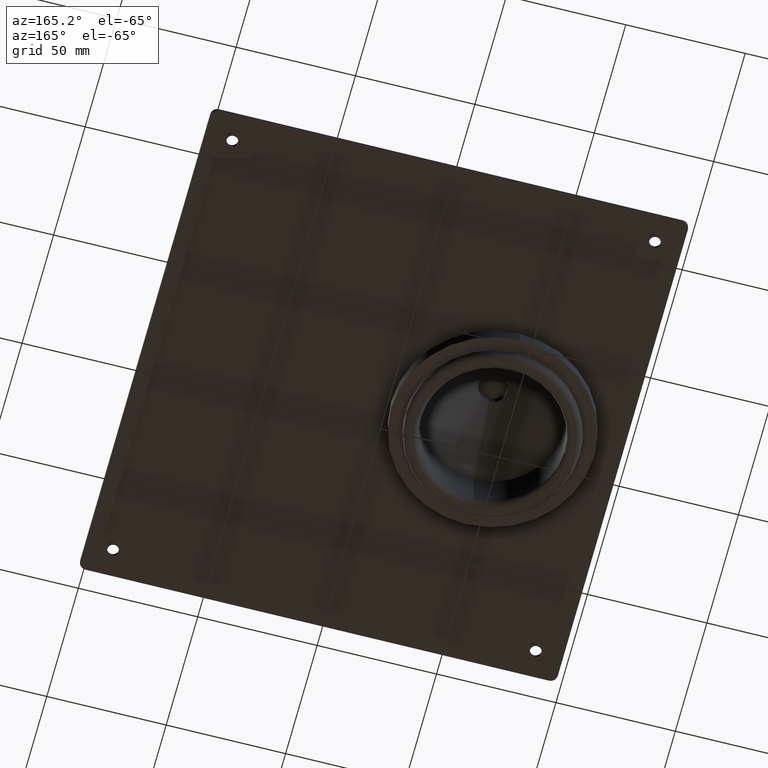
[diagram: clean part render]
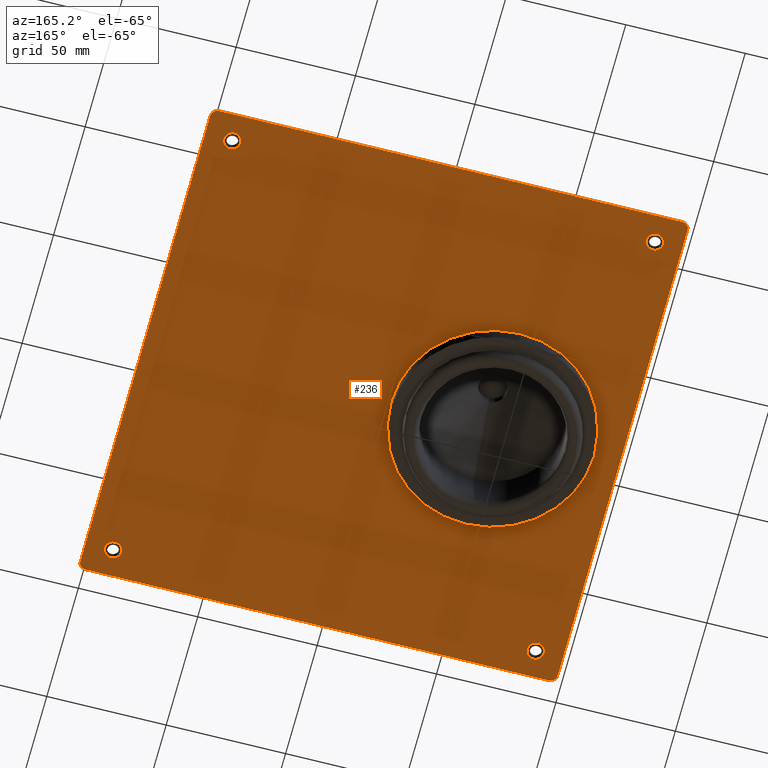
[diagram: same view with one face highlighted and labeled with its STEP entity id]
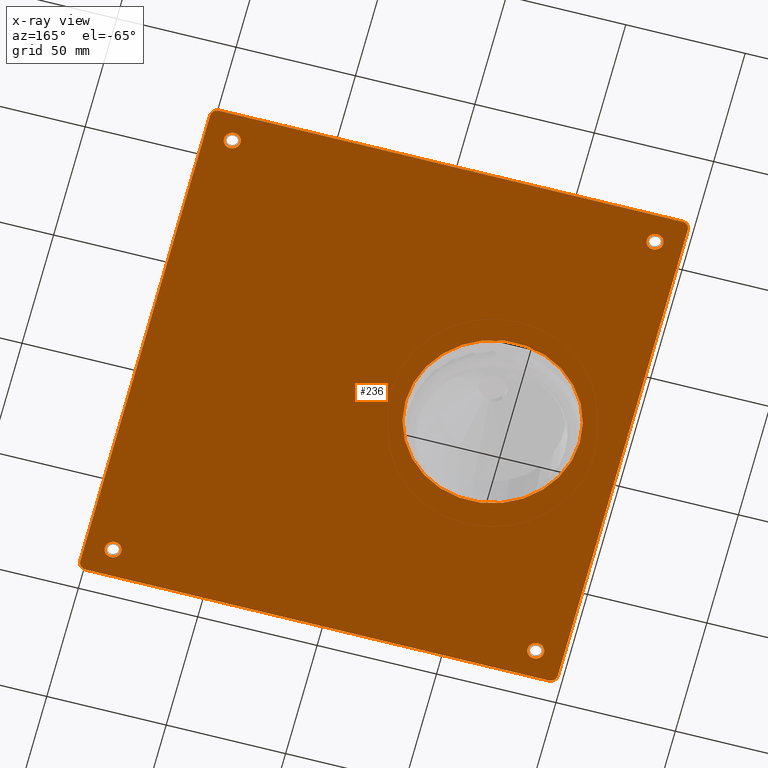
[diagram: x-ray of the same camera — body ghosted, the highlighted face saturated]
A machine part, auxiliary view. The second image highlights one B-rep face of the part: STEP entity #236.
The next image is the same camera in x-ray: the body ghosted, the highlighted face saturated — about 0% of this face is hidden behind the body in this view.
In plain terms, the highlighted planar face has unit normal (0, 0, -1).
Its self-contained STEP definition (entity closure, byte-faithful):
#236=ADVANCED_FACE('',(#488,#489,#490,#491,#492,#493),#494,.T.);
#488=FACE_OUTER_BOUND('',#774,.T.);
#489=FACE_BOUND('',#775,.T.);
#490=FACE_BOUND('',#776,.T.);
#491=FACE_BOUND('',#777,.T.);
#492=FACE_BOUND('',#778,.T.);
#493=FACE_BOUND('',#779,.T.);
#494=PLANE('',#780);
#774=EDGE_LOOP('',(#1256,#1257,#1258,#1259,#1260,#1261,#1262,#1263));
#775=EDGE_LOOP('',(#1264,#1265));
#776=EDGE_LOOP('',(#1266,#1267));
#777=EDGE_LOOP('',(#1268,#1269));
#778=EDGE_LOOP('',(#1270,#1271));
#779=EDGE_LOOP('',(#1272,#1273));
#780=AXIS2_PLACEMENT_3D('',#1274,#1275,#1276);
#1256=ORIENTED_EDGE('',*,*,#1729,.F.);
#1257=ORIENTED_EDGE('',*,*,#1758,.F.);
#1258=ORIENTED_EDGE('',*,*,#1754,.F.);
#1259=ORIENTED_EDGE('',*,*,#1750,.F.);
#1260=ORIENTED_EDGE('',*,*,#1746,.F.);
#1261=ORIENTED_EDGE('',*,*,#1742,.F.);
#1262=ORIENTED_EDGE('',*,*,#1738,.F.);
#1263=ORIENTED_EDGE('',*,*,#1734,.F.);
#1264=ORIENTED_EDGE('',*,*,#1646,.T.);
#1265=ORIENTED_EDGE('',*,*,#1711,.T.);
#1266=ORIENTED_EDGE('',*,*,#1641,.T.);
#1267=ORIENTED_EDGE('',*,*,#1715,.T.);
#1268=ORIENTED_EDGE('',*,*,#1636,.T.);
#1269=ORIENTED_EDGE('',*,*,#1719,.T.);
#1270=ORIENTED_EDGE('',*,*,#1631,.T.);
#1271=ORIENTED_EDGE('',*,*,#1723,.T.);
#1272=ORIENTED_EDGE('',*,*,#1626,.T.);
#1273=ORIENTED_EDGE('',*,*,#1727,.T.);
#1274=CARTESIAN_POINT('',(100.0,106.0,15.0));
#1275=DIRECTION('',(0.0,0.0,-1.0));
#1276=DIRECTION('',(0.0,-1.0,0.0));
#1626=EDGE_CURVE('',#1898,#1895,#1899,.T.);
#1631=EDGE_CURVE('',#1907,#1904,#1908,.T.);
#1636=EDGE_CURVE('',#1916,#1913,#1917,.T.);
#1641=EDGE_CURVE('',#1925,#1922,#1926,.T.);
#1646=EDGE_CURVE('',#1934,#1931,#1935,.T.);
#1711=EDGE_CURVE('',#1931,#1934,#2029,.T.);
#1715=EDGE_CURVE('',#1922,#1925,#2033,.T.);
#1719=EDGE_CURVE('',#1913,#1916,#2037,.T.);
#1723=EDGE_CURVE('',#1904,#1907,#2041,.T.);
#1727=EDGE_CURVE('',#1895,#1898,#2045,.T.);
#1729=EDGE_CURVE('',#2047,#2048,#2049,.T.);
#1734=EDGE_CURVE('',#2048,#2056,#2057,.T.);
#1738=EDGE_CURVE('',#2056,#2062,#2063,.T.);
#1742=EDGE_CURVE('',#2062,#2068,#2069,.T.);
#1746=EDGE_CURVE('',#2068,#2074,#2075,.T.);
#1750=EDGE_CURVE('',#2074,#2080,#2081,.T.);
#1754=EDGE_CURVE('',#2080,#2086,#2087,.T.);
#1758=EDGE_CURVE('',#2086,#2047,#2092,.T.);
#1895=VERTEX_POINT('',#2287);
#1898=VERTEX_POINT('',#2291);
#1899=CIRCLE('',#2292,36.5);
#1904=VERTEX_POINT('',#2298);
#1907=VERTEX_POINT('',#2302);
#1908=CIRCLE('',#2303,3.5);
#1913=VERTEX_POINT('',#2309);
#1916=VERTEX_POINT('',#2313);
#1917=CIRCLE('',#2314,3.5);
#1922=VERTEX_POINT('',#2320);
#1925=VERTEX_POINT('',#2324);
#1926=CIRCLE('',#2325,3.5);
#1931=VERTEX_POINT('',#2331);
#1934=VERTEX_POINT('',#2335);
#1935=CIRCLE('',#2336,3.5);
#2029=CIRCLE('',#2439,3.5);
#2033=CIRCLE('',#2443,3.5);
#2037=CIRCLE('',#2447,3.5);
#2041=CIRCLE('',#2451,3.5);
#2045=CIRCLE('',#2455,36.5);
#2047=VERTEX_POINT('',#2457);
#2048=VERTEX_POINT('',#2458);
#2049=LINE('',#2459,#2460);
#2056=VERTEX_POINT('',#2470);
#2057=CIRCLE('',#2471,3.0);
#2062=VERTEX_POINT('',#2477);
#2063=LINE('',#2478,#2479);
#2068=VERTEX_POINT('',#2486);
#2069=CIRCLE('',#2487,3.00000000000001);
#2074=VERTEX_POINT('',#2493);
#2075=LINE('',#2494,#2495);
#2080=VERTEX_POINT('',#2502);
#2081=CIRCLE('',#2503,3.00000000000001);
#2086=VERTEX_POINT('',#2509);
#2087=LINE('',#2510,#2511);
#2092=CIRCLE('',#2518,3.00000000000001);
#2287=CARTESIAN_POINT('',(18.0,106.0,15.0));
#2291=CARTESIAN_POINT('',(91.0,106.0,15.0));
#2292=AXIS2_PLACEMENT_3D('',#2739,#2740,#2741);
#2298=CARTESIAN_POINT('',(185.0,11.5,15.0));
#2302=CARTESIAN_POINT('',(192.0,11.5,15.0));
#2303=AXIS2_PLACEMENT_3D('',#2747,#2748,#2749);
#2309=CARTESIAN_POINT('',(8.0,11.5,15.0));
#2313=CARTESIAN_POINT('',(15.0,11.5,15.0));
#2314=AXIS2_PLACEMENT_3D('',#2755,#2756,#2757);
#2320=CARTESIAN_POINT('',(185.0,200.5,15.0));
#2324=CARTESIAN_POINT('',(192.0,200.5,15.0));
#2325=AXIS2_PLACEMENT_3D('',#2763,#2764,#2765);
#2331=CARTESIAN_POINT('',(8.0,200.5,15.0));
#2335=CARTESIAN_POINT('',(15.0,200.5,15.0));
#2336=AXIS2_PLACEMENT_3D('',#2771,#2772,#2773);
#2439=AXIS2_PLACEMENT_3D('',#2897,#2898,#2899);
#2443=AXIS2_PLACEMENT_3D('',#2903,#2904,#2905);
#2447=AXIS2_PLACEMENT_3D('',#2909,#2910,#2911);
#2451=AXIS2_PLACEMENT_3D('',#2915,#2916,#2917);
#2455=AXIS2_PLACEMENT_3D('',#2921,#2922,#2923);
#2457=CARTESIAN_POINT('',(0.0,209.0,15.0));
#2458=CARTESIAN_POINT('',(1.00001784630877E-010,3.00000000000051,15.0));
#2459=CARTESIAN_POINT('',(0.0,106.0,15.0));
#2460=VECTOR('',#2924,1.0);
#2470=CARTESIAN_POINT('',(3.0,0.0,15.0));
#2471=AXIS2_PLACEMENT_3D('',#2928,#2929,#2930);
#2477=CARTESIAN_POINT('',(196.999999999999,1.00001784630877E-010,15.0));
#2478=CARTESIAN_POINT('',(197.0,0.0,15.0));
#2479=VECTOR('',#2935,1.0);
#2486=CARTESIAN_POINT('',(200.0,3.0,15.0));
#2487=AXIS2_PLACEMENT_3D('',#2938,#2939,#2940);
#2493=CARTESIAN_POINT('',(199.9999999999,208.999999999999,15.0));
#2494=CARTESIAN_POINT('',(200.0,209.0,15.0));
#2495=VECTOR('',#2945,1.0);
#2502=CARTESIAN_POINT('',(197.0,212.0,15.0));
#2503=AXIS2_PLACEMENT_3D('',#2948,#2949,#2950);
#2509=CARTESIAN_POINT('',(3.00000000000051,211.9999999999,15.0));
#2510=CARTESIAN_POINT('',(3.0,212.0,15.0));
#2511=VECTOR('',#2955,1.0);
#2518=AXIS2_PLACEMENT_3D('',#2958,#2959,#2960);
#2739=CARTESIAN_POINT('',(54.5,106.0,15.0));
#2740=DIRECTION('',(0.0,0.0,1.0));
#2741=DIRECTION('',(-1.0,0.0,0.0));
#2747=CARTESIAN_POINT('',(188.5,11.5,15.0));
#2748=DIRECTION('',(0.0,0.0,1.0));
#2749=DIRECTION('',(-1.0,0.0,0.0));
#2755=CARTESIAN_POINT('',(11.5,11.5,15.0));
#2756=DIRECTION('',(0.0,0.0,1.0));
#2757=DIRECTION('',(-1.0,0.0,0.0));
#2763=CARTESIAN_POINT('',(188.5,200.5,15.0));
#2764=DIRECTION('',(0.0,0.0,1.0));
#2765=DIRECTION('',(-1.0,0.0,0.0));
#2771=CARTESIAN_POINT('',(11.5,200.5,15.0));
#2772=DIRECTION('',(0.0,0.0,1.0));
#2773=DIRECTION('',(-1.0,0.0,0.0));
#2897=CARTESIAN_POINT('',(11.5,200.5,15.0));
#2898=DIRECTION('',(0.0,0.0,1.0));
#2899=DIRECTION('',(-1.0,0.0,0.0));
#2903=CARTESIAN_POINT('',(188.5,200.5,15.0));
#2904=DIRECTION('',(0.0,0.0,1.0));
#2905=DIRECTION('',(-1.0,0.0,0.0));
#2909=CARTESIAN_POINT('',(11.5,11.5,15.0));
#2910=DIRECTION('',(0.0,0.0,1.0));
#2911=DIRECTION('',(-1.0,0.0,0.0));
#2915=CARTESIAN_POINT('',(188.5,11.5,15.0));
#2916=DIRECTION('',(0.0,0.0,1.0));
#2917=DIRECTION('',(-1.0,0.0,0.0));
#2921=CARTESIAN_POINT('',(54.5,106.0,15.0));
#2922=DIRECTION('',(0.0,0.0,1.0));
#2923=DIRECTION('',(-1.0,0.0,0.0));
#2924=DIRECTION('',(0.0,-1.0,0.0));
#2928=CARTESIAN_POINT('',(3.0000000001,3.0000000001,15.0));
#2929=DIRECTION('',(0.0,0.0,1.0));
#2930=DIRECTION('',(-3.3158661002138E-011,-1.0,0.0));
#2935=DIRECTION('',(1.0,-0.0,0.0));
#2938=CARTESIAN_POINT('',(196.9999999999,3.00000000010002,15.0));
#2939=DIRECTION('',(0.0,-0.0,1.0));
#2940=DIRECTION('',(1.0,-3.31681349052813E-011,-0.0));
#2945=DIRECTION('',(0.0,1.0,0.0));
#2948=CARTESIAN_POINT('',(196.9999999999,208.9999999999,15.0));
#2949=DIRECTION('',(0.0,-0.0,1.0));
#2950=DIRECTION('',(3.31681349052813E-011,1.0,0.0));
#2955=DIRECTION('',(-1.0,0.0,0.0));
#2958=CARTESIAN_POINT('',(3.00000000010002,208.9999999999,15.0));
#2959=DIRECTION('',(0.0,0.0,1.0));
#2960=DIRECTION('',(-1.0,3.31681349052813E-011,0.0));